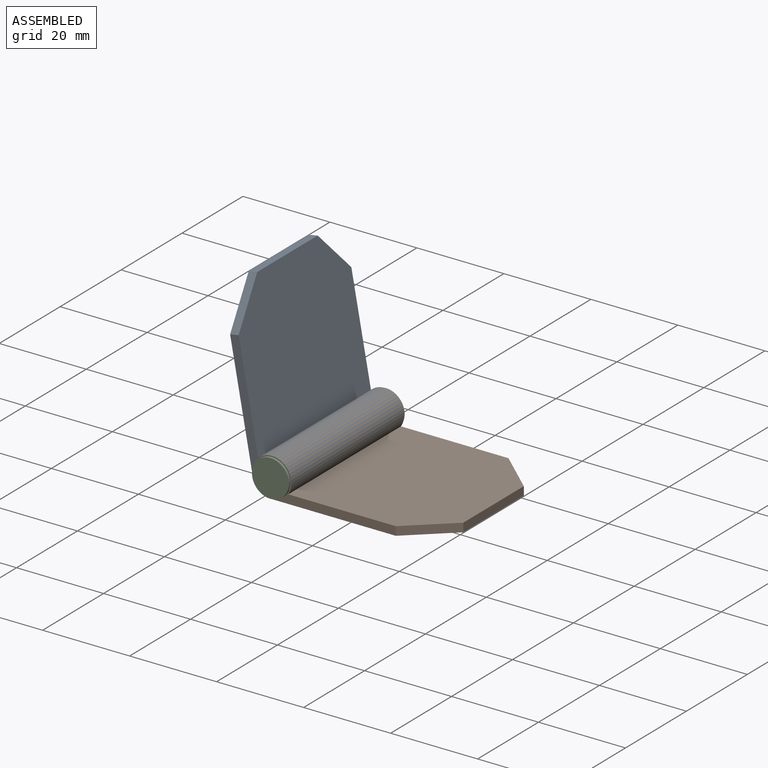
[diagram: assembled view]
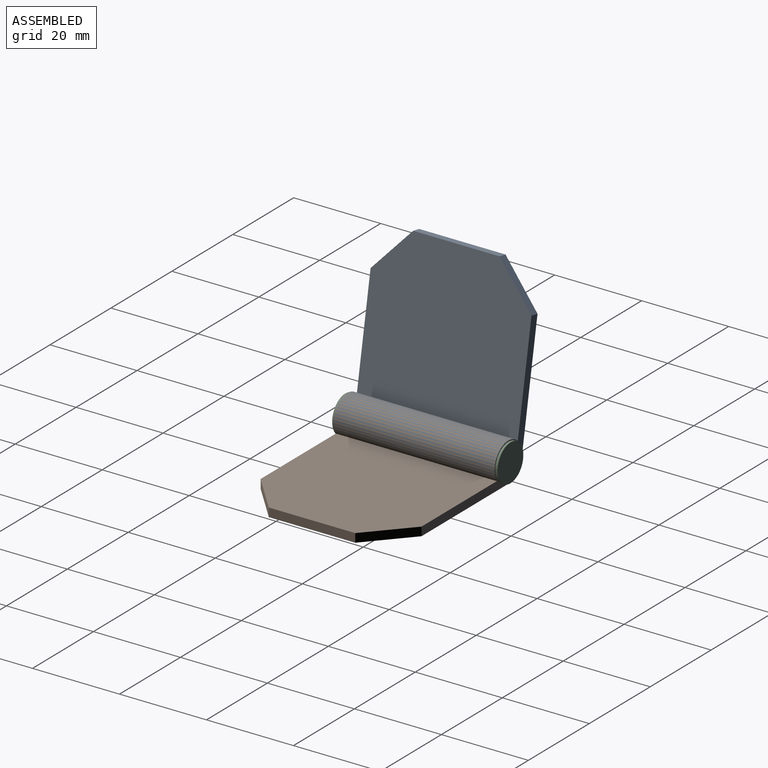
[diagram: assembled view, second angle]
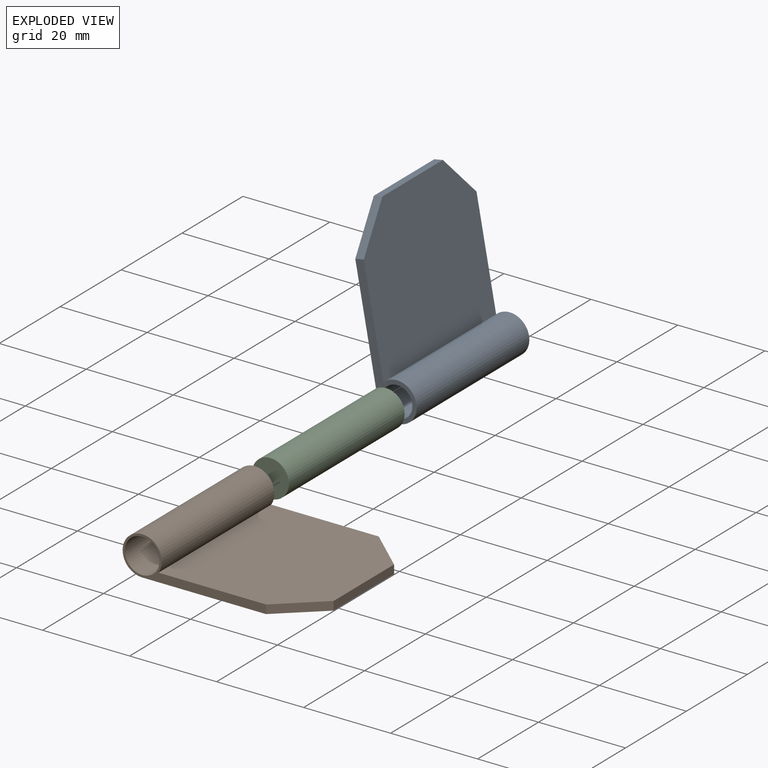
[diagram: exploded view]
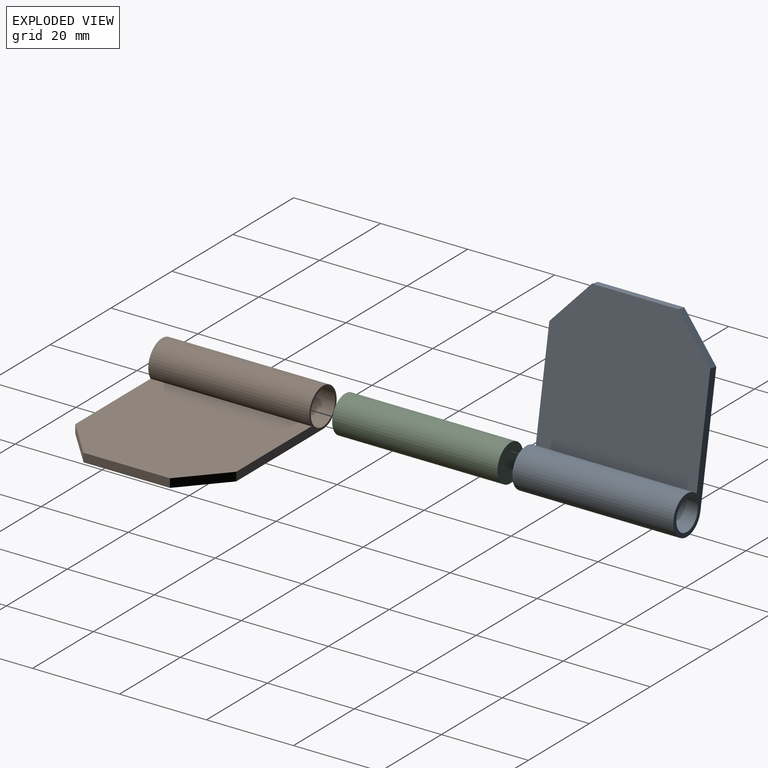
[diagram: exploded view, second angle]
ASSEMBLY  parts=3 mates=2
PART A: 9 faces, bbox 42.5x37x9 mm
  f0: plane 19.86x2mm, normal (-1,0,0), area 39.7mm2, adj f1,f3,f7,f8
  f1: plane 38x37mm, normal (0,0,-1), area 1324.4mm2, adj f0,f2,f5,f6,f7,f8
  f2: cylinder r=4.5mm len=37mm, axis (0,1,0), area 882.7mm2, adj f1,f3,f5,f6
  f3: plane 37x34.26mm, normal (0,0,1), area 1185.9mm2, adj f0,f2,f5,f6,f7,f8
  f4: cylinder r=3.5mm len=37mm, axis (0,1,0), area 813.7mm2, adj f5,f6
  f5: plane 32.97x9mm, normal (0,-1,0), area 76.8mm2, adj f1,f2,f3,f4,f8
  f6: plane 32.97x9mm, normal (0,1,0), area 76.8mm2, adj f1,f2,f3,f4,f7
  f7: plane 9.53x8.57mm, normal (-0.67,0.74,0), area 25.6mm2, adj f0,f1,f3,f6
  f8: plane 9.53x8.57mm, normal (-0.67,-0.74,0), area 25.6mm2, adj f0,f1,f3,f5
PART B: 9 faces, bbox 37x42.5x9 mm
  f0: plane 19.86x2mm, normal (0,1,0), area 39.7mm2, adj f3,f5,f7,f8
  f1: plane 32.97x9mm, normal (1,0,0), area 65mm2, adj f3,f4,f5,f6,f7
  f2: plane 32.97x9mm, normal (-1,0,0), area 65mm2, adj f3,f4,f5,f6,f8
  f3: plane 37x34.26mm, normal (0,0,1), area 1185.9mm2, adj f0,f1,f2,f4,f7,f8
  f4: cylinder r=4.5mm len=37mm, axis (-1,0,0), area 882.7mm2, adj f1,f2,f3,f5
  f5: plane 38x37mm, normal (0,0,-1), area 1324.4mm2, adj f0,f1,f2,f4,f7,f8
  f6: cylinder r=4mm len=37mm, axis (-1,0,0), area 929.9mm2, adj f1,f2
  f7: plane 9.53x8.57mm, normal (0.74,0.67,0), area 25.6mm2, adj f0,f1,f3,f5
  f8: plane 9.53x8.57mm, normal (-0.74,0.67,0), area 25.6mm2, adj f0,f2,f3,f5
PART C: 3 faces, bbox 8.5x38x8.5 mm
  f0: cylinder r=4.25mm len=38mm, axis (0,1,0), area 1014.7mm2, adj f1,f2
  f1: plane 8.5x8.5mm, normal (0,-1,0), area 56.7mm2, adj f0
  f2: plane 8.5x8.5mm, normal (0,1,0), area 56.7mm2, adj f0
PLACE A rot(axis=(0,1,0),79.5deg) t=(-16.74,7.64,-7.05)mm
PLACE B rot(axis=(0,0,-1),90deg) t=(-16.74,7.64,-7.05)mm
PLACE C t=(-16.74,8.14,-7.05)mm fixed
MATE revolute B.f6 <-> C.f0  axis (0,1,0) through (-16.74,-10.86,-7.05)mm
MATE revolute A.f2 <-> C.f0  axis (0,1,0) through (-16.74,-10.86,-7.05)mm
